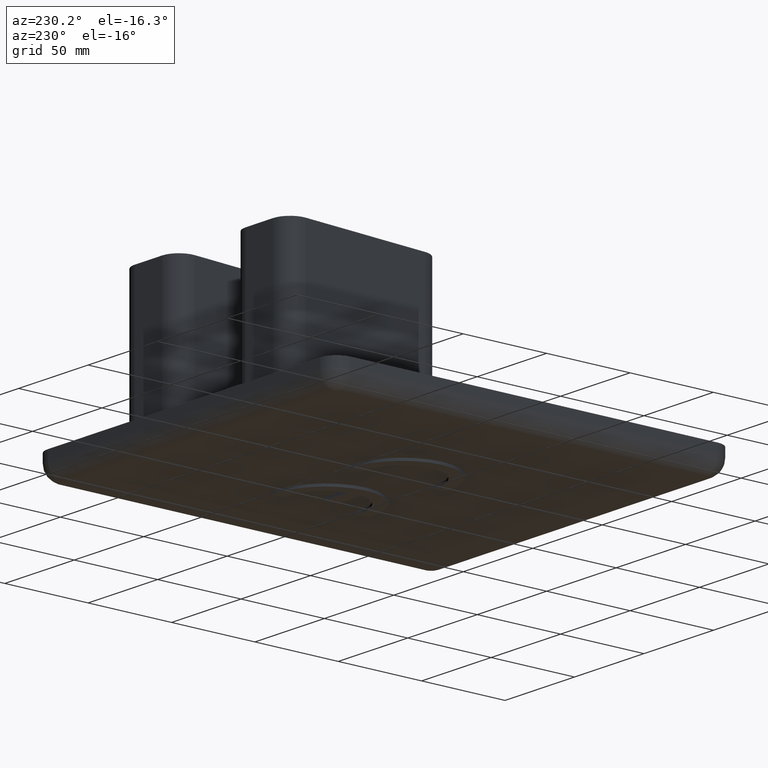
[diagram: clean part render]
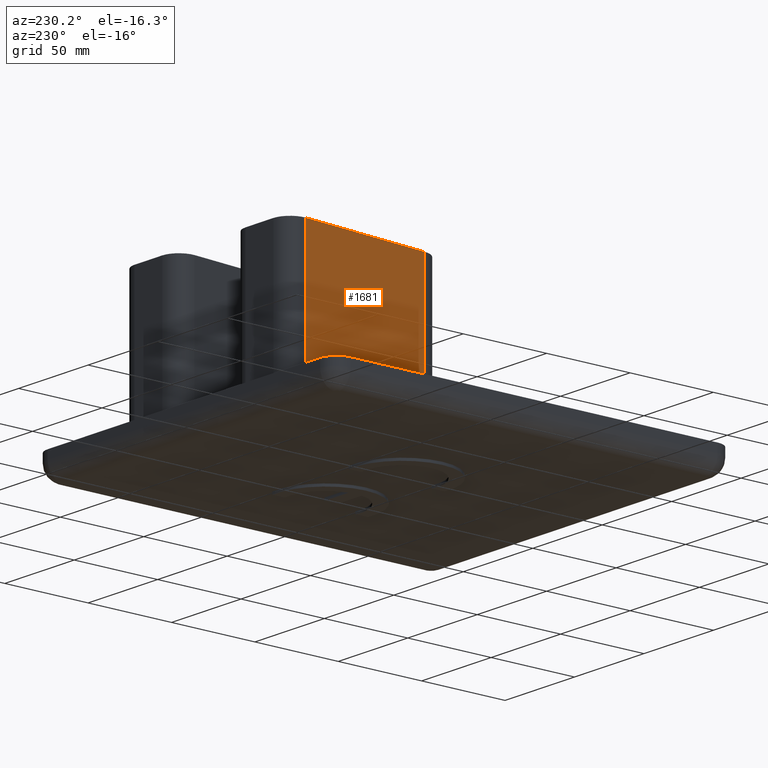
[diagram: same view with one face highlighted and labeled with its STEP entity id]
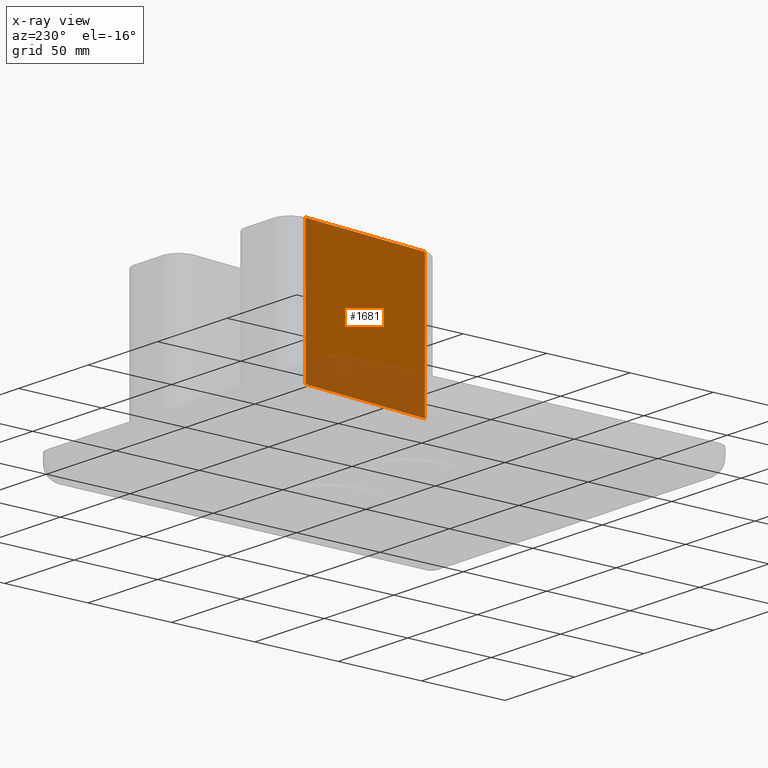
[diagram: x-ray of the same camera — body ghosted, the highlighted face saturated]
A machine part, auxiliary view. The second image highlights one B-rep face of the part: STEP entity #1681.
The next image is the same camera in x-ray: the body ghosted, the highlighted face saturated — about 23% of this face is hidden behind the body in this view.
In plain terms, the highlighted planar face has unit normal (-0.9948, -0.1019, 0).
Its self-contained STEP definition (entity closure, byte-faithful):
#898=CARTESIAN_POINT('',(-175.23850725564637,127.41801253507381,15.000000000000002));
#899=VERTEX_POINT('',#898);
#907=CARTESIAN_POINT('',(-183.2489173040957,205.621806118606,15.000000000000002));
#908=VERTEX_POINT('',#907);
#909=CARTESIAN_POINT('',(-175.23850725564637,127.41801253507381,15.000000000000002));
#910=DIRECTION('',(-0.101896791766064,0.994794975775302,0.0));
#911=VECTOR('',#910,78.612976028134241);
#912=LINE('',#909,#911);
#913=EDGE_CURVE('',#899,#908,#912,.T.);
#1508=CARTESIAN_POINT('',(-175.23850725564637,127.41801253507381,95.000000000000028));
#1509=VERTEX_POINT('',#1508);
#1517=CARTESIAN_POINT('',(-175.23850725564637,127.41801253507381,15.000000000000002));
#1518=DIRECTION('',(0.0,0.0,1.0));
#1519=VECTOR('',#1518,80.000000000000028);
#1520=LINE('',#1517,#1519);
#1521=EDGE_CURVE('',#899,#1509,#1520,.T.);
#1605=CARTESIAN_POINT('',(-183.2489173040957,205.621806118606,95.000000000000028));
#1606=VERTEX_POINT('',#1605);
#1614=CARTESIAN_POINT('',(-175.23850725564637,127.41801253507381,95.000000000000028));
#1615=DIRECTION('',(-0.101896791766064,0.994794975775302,0.0));
#1616=VECTOR('',#1615,78.612976028134241);
#1617=LINE('',#1614,#1616);
#1618=EDGE_CURVE('',#1509,#1606,#1617,.T.);
#1665=CARTESIAN_POINT('',(-175.23850725564637,127.41801253507381,15.000000000000002));
#1666=DIRECTION('',(-0.994794975775302,-0.101896791766064,0.0));
#1667=DIRECTION('',(0.0,0.0,1.0));
#1668=AXIS2_PLACEMENT_3D('',#1665,#1666,#1667);
#1669=PLANE('',#1668);
#1670=CARTESIAN_POINT('',(-183.2489173040957,205.621806118606,15.000000000000002));
#1671=DIRECTION('',(0.0,0.0,1.0));
#1672=VECTOR('',#1671,80.000000000000028);
#1673=LINE('',#1670,#1672);
#1674=EDGE_CURVE('',#908,#1606,#1673,.T.);
#1675=ORIENTED_EDGE('',*,*,#1674,.F.);
#1676=ORIENTED_EDGE('',*,*,#913,.F.);
#1677=ORIENTED_EDGE('',*,*,#1521,.T.);
#1678=ORIENTED_EDGE('',*,*,#1618,.T.);
#1679=EDGE_LOOP('',(#1675,#1676,#1677,#1678));
#1680=FACE_OUTER_BOUND('',#1679,.T.);
#1681=ADVANCED_FACE('',(#1680),#1669,.T.);